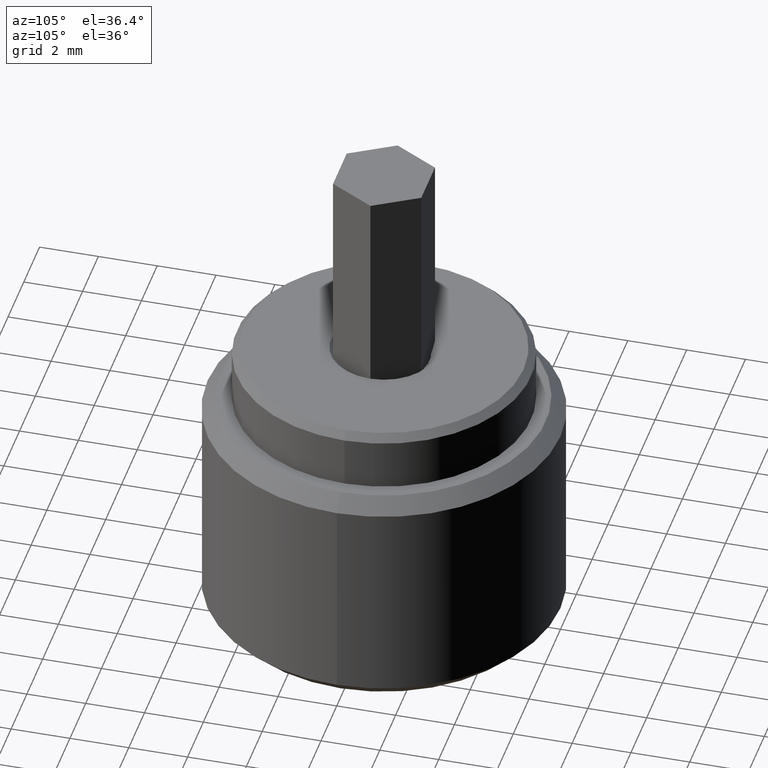
[diagram: clean part render]
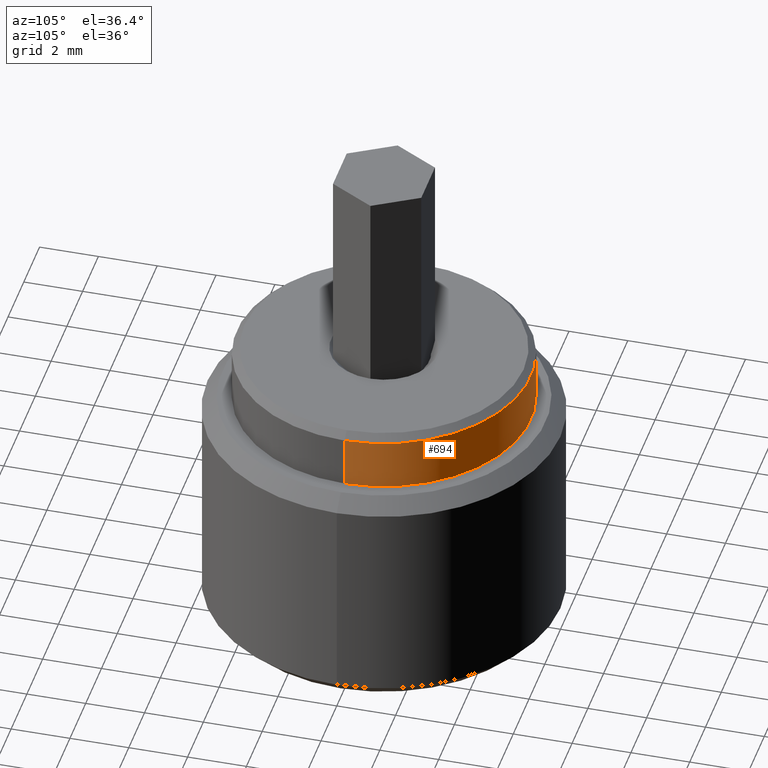
[diagram: same view with one face highlighted and labeled with its STEP entity id]
A machine part, auxiliary view. The second image highlights one B-rep face of the part: STEP entity #694.
In plain terms, the highlighted cylindrical surface (partial cylindrical patch) has radius 5 mm, axis along (0, 0, 1).
Its self-contained STEP definition (entity closure, byte-faithful):
#48 = VERTEX_POINT ( 'NONE', #879 ) ;
#49 = CYLINDRICAL_SURFACE ( 'NONE', #240, 5.000000000000000000 ) ;
#87 = CARTESIAN_POINT ( 'NONE',  ( 0.000000000000000000, 0.000000000000000000, 9.750000000000005329 ) ) ;
#94 = VERTEX_POINT ( 'NONE', #268 ) ;
#96 = EDGE_CURVE ( 'NONE', #891, #94, #798, .T. ) ;
#116 = EDGE_LOOP ( 'NONE', ( #403, #603, #447, #200 ) ) ;
#138 = EDGE_CURVE ( 'NONE', #48, #891, #833, .T. ) ;
#200 = ORIENTED_EDGE ( 'NONE', *, *, #96, .F. ) ;
#215 = DIRECTION ( 'NONE',  ( 0.000000000000000000, 0.000000000000000000, -1.000000000000000000 ) ) ;
#223 = DIRECTION ( 'NONE',  ( -0.000000000000000000, -0.000000000000000000, 1.000000000000000000 ) ) ;
#240 = AXIS2_PLACEMENT_3D ( 'NONE', #656, #732, #504 ) ;
#268 = CARTESIAN_POINT ( 'NONE',  ( 5.000000000000000000, 0.000000000000000000, 9.750000000000005329 ) ) ;
#403 = ORIENTED_EDGE ( 'NONE', *, *, #138, .F. ) ;
#436 = VECTOR ( 'NONE', #897, 1000.000000000000000 ) ;
#441 = VERTEX_POINT ( 'NONE', #794 ) ;
#447 = ORIENTED_EDGE ( 'NONE', *, *, #946, .T. ) ;
#504 = DIRECTION ( 'NONE',  ( 1.000000000000000000, 0.000000000000000000, 0.000000000000000000 ) ) ;
#528 = CARTESIAN_POINT ( 'NONE',  ( -5.000000000000000000, 6.123233995736765296E-16, -16.97056274847714263 ) ) ;
#544 = DIRECTION ( 'NONE',  ( -0.000000000000000000, -0.000000000000000000, -1.000000000000000000 ) ) ;
#559 = AXIS2_PLACEMENT_3D ( 'NONE', #87, #215, #973 ) ;
#603 = ORIENTED_EDGE ( 'NONE', *, *, #903, .T. ) ;
#605 = CARTESIAN_POINT ( 'NONE',  ( 0.000000000000000000, 0.000000000000000000, 8.000000000000000000 ) ) ;
#641 = VECTOR ( 'NONE', #223, 1000.000000000000000 ) ;
#656 = CARTESIAN_POINT ( 'NONE',  ( 0.000000000000000000, 0.000000000000000000, -16.97056274847714263 ) ) ;
#686 = CARTESIAN_POINT ( 'NONE',  ( 5.000000000000000000, 0.000000000000000000, 8.000000000000000000 ) ) ;
#694 = ADVANCED_FACE ( 'NONE', ( #966 ), #49, .T. ) ;
#732 = DIRECTION ( 'NONE',  ( -0.000000000000000000, -0.000000000000000000, 1.000000000000000000 ) ) ;
#779 = DIRECTION ( 'NONE',  ( 1.000000000000000000, 0.000000000000000000, 0.000000000000000000 ) ) ;
#794 = CARTESIAN_POINT ( 'NONE',  ( -5.000000000000000000, 6.123233995736765296E-16, 9.750000000000005329 ) ) ;
#798 = LINE ( 'NONE', #976, #436 ) ;
#833 = CIRCLE ( 'NONE', #898, 5.000000000000000000 ) ;
#879 = CARTESIAN_POINT ( 'NONE',  ( -5.000000000000000000, 6.123233995736765296E-16, 8.000000000000000000 ) ) ;
#891 = VERTEX_POINT ( 'NONE', #686 ) ;
#897 = DIRECTION ( 'NONE',  ( -0.000000000000000000, -0.000000000000000000, 1.000000000000000000 ) ) ;
#898 = AXIS2_PLACEMENT_3D ( 'NONE', #605, #544, #779 ) ;
#901 = LINE ( 'NONE', #528, #641 ) ;
#903 = EDGE_CURVE ( 'NONE', #48, #441, #901, .T. ) ;
#946 = EDGE_CURVE ( 'NONE', #441, #94, #987, .T. ) ;
#966 = FACE_OUTER_BOUND ( 'NONE', #116, .T. ) ;
#973 = DIRECTION ( 'NONE',  ( 1.000000000000000000, 0.000000000000000000, 0.000000000000000000 ) ) ;
#976 = CARTESIAN_POINT ( 'NONE',  ( 5.000000000000000000, 0.000000000000000000, -16.97056274847714263 ) ) ;
#987 = CIRCLE ( 'NONE', #559, 5.000000000000000000 ) ;